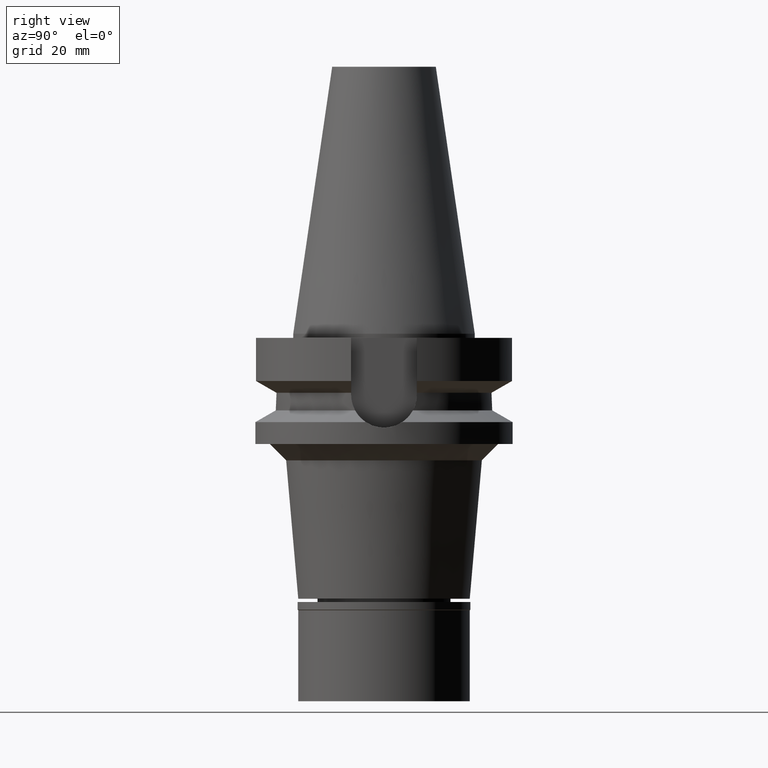
[diagram: clean part render]
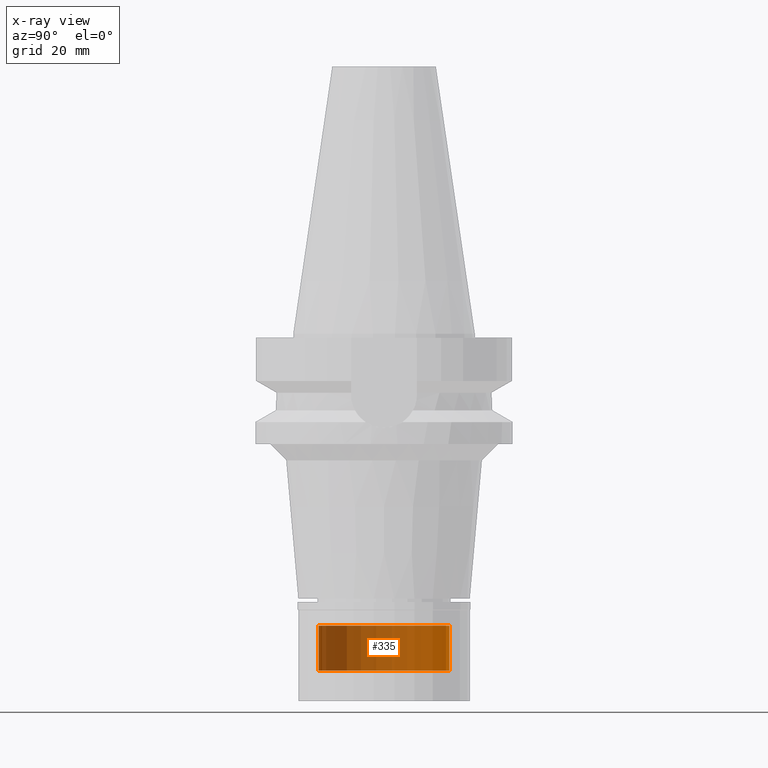
[diagram: x-ray — body ghosted, one internal face saturated and labeled with its STEP entity id]
A machine part, right view, then the same camera in x-ray: the body is ghosted and one INTERNAL B-rep face — a face not visible from any outside direction — is saturated and labeled: STEP entity #335.
In plain terms, the highlighted cylindrical surface (partial cylindrical patch) has radius 16 mm, axis along (0, 0, -1).
Its self-contained STEP definition (entity closure, byte-faithful):
#67 = CARTESIAN_POINT ( 'NONE',  ( 0.0000000000000000000, -16.00000000000000000, -71.50000000000000000 ) ) ;
#93 = ORIENTED_EDGE ( 'NONE', *, *, #872, .T. ) ;
#186 = CARTESIAN_POINT ( 'NONE',  ( 0.0000000000000000000, -16.00000000000000000, -71.50000000000000000 ) ) ;
#255 = EDGE_CURVE ( 'NONE', #1267, #1667, #2033, .T. ) ;
#261 = DIRECTION ( 'NONE',  ( 0.0000000000000000000, -1.000000000000000000, 0.0000000000000000000 ) ) ;
#335 = ADVANCED_FACE ( 'NONE', ( #1299 ), #1063, .T. ) ;
#512 = CARTESIAN_POINT ( 'NONE',  ( 0.0000000000000000000, 16.00000000000000000, -82.50000000000000000 ) ) ;
#571 = ORIENTED_EDGE ( 'NONE', *, *, #255, .F. ) ;
#572 = CARTESIAN_POINT ( 'NONE',  ( 0.0000000000000000000, 2.116128436586999977E-14, -82.50000000000000000 ) ) ;
#615 = ORIENTED_EDGE ( 'NONE', *, *, #2340, .T. ) ;
#758 = DIRECTION ( 'NONE',  ( 0.0000000000000000000, 0.0000000000000000000, 1.000000000000000000 ) ) ;
#823 = DIRECTION ( 'NONE',  ( 0.0000000000000000000, 0.0000000000000000000, -1.000000000000000000 ) ) ;
#872 = EDGE_CURVE ( 'NONE', #1267, #1923, #2205, .T. ) ;
#955 = ORIENTED_EDGE ( 'NONE', *, *, #1162, .T. ) ;
#1047 = AXIS2_PLACEMENT_3D ( 'NONE', #2451, #1474, #261 ) ;
#1063 = CYLINDRICAL_SURFACE ( 'NONE', #2307, 16.00000000000000000 ) ;
#1162 = EDGE_CURVE ( 'NONE', #1923, #2422, #1212, .T. ) ;
#1212 = LINE ( 'NONE', #1620, #1960 ) ;
#1267 = VERTEX_POINT ( 'NONE', #186 ) ;
#1299 = FACE_OUTER_BOUND ( 'NONE', #2527, .T. ) ;
#1474 = DIRECTION ( 'NONE',  ( 0.0000000000000000000, 0.0000000000000000000, -1.000000000000000000 ) ) ;
#1533 = DIRECTION ( 'NONE',  ( 0.0000000000000000000, 0.0000000000000000000, -1.000000000000000000 ) ) ;
#1548 = DIRECTION ( 'NONE',  ( 0.0000000000000000000, -1.000000000000000000, 0.0000000000000000000 ) ) ;
#1594 = VECTOR ( 'NONE', #1533, 1000.000000000000000 ) ;
#1620 = CARTESIAN_POINT ( 'NONE',  ( 0.0000000000000000000, 16.00000000000000000, -71.50000000000000000 ) ) ;
#1667 = VERTEX_POINT ( 'NONE', #2383 ) ;
#1923 = VERTEX_POINT ( 'NONE', #2992 ) ;
#1956 = DIRECTION ( 'NONE',  ( 0.0000000000000000000, 1.000000000000000000, 0.0000000000000000000 ) ) ;
#1960 = VECTOR ( 'NONE', #2859, 1000.000000000000000 ) ;
#2033 = LINE ( 'NONE', #67, #1594 ) ;
#2120 = AXIS2_PLACEMENT_3D ( 'NONE', #572, #758, #1956 ) ;
#2205 = CIRCLE ( 'NONE', #1047, 16.00000000000000000 ) ;
#2307 = AXIS2_PLACEMENT_3D ( 'NONE', #2993, #823, #1548 ) ;
#2340 = EDGE_CURVE ( 'NONE', #2422, #1667, #3097, .T. ) ;
#2383 = CARTESIAN_POINT ( 'NONE',  ( 0.0000000000000000000, -16.00000000000000000, -82.50000000000000000 ) ) ;
#2422 = VERTEX_POINT ( 'NONE', #512 ) ;
#2451 = CARTESIAN_POINT ( 'NONE',  ( 0.0000000000000000000, 2.116128436586999977E-14, -71.50000000000000000 ) ) ;
#2527 = EDGE_LOOP ( 'NONE', ( #615, #571, #93, #955 ) ) ;
#2859 = DIRECTION ( 'NONE',  ( 0.0000000000000000000, 0.0000000000000000000, -1.000000000000000000 ) ) ;
#2992 = CARTESIAN_POINT ( 'NONE',  ( 0.0000000000000000000, 16.00000000000000000, -71.50000000000000000 ) ) ;
#2993 = CARTESIAN_POINT ( 'NONE',  ( 0.0000000000000000000, 2.116128436586999977E-14, 72.79500000000000171 ) ) ;
#3097 = CIRCLE ( 'NONE', #2120, 16.00000000000000000 ) ;